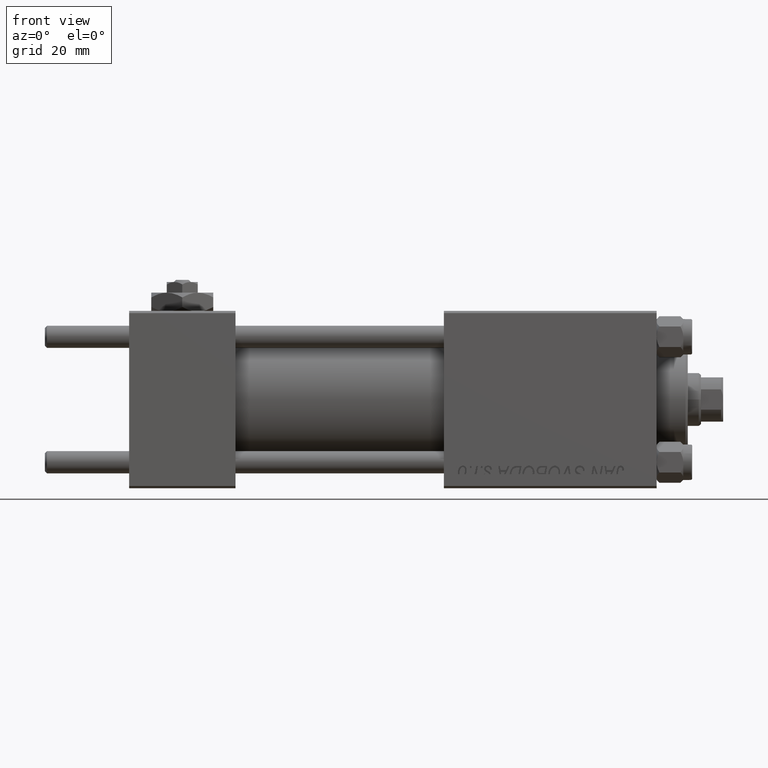
[diagram: clean part render]
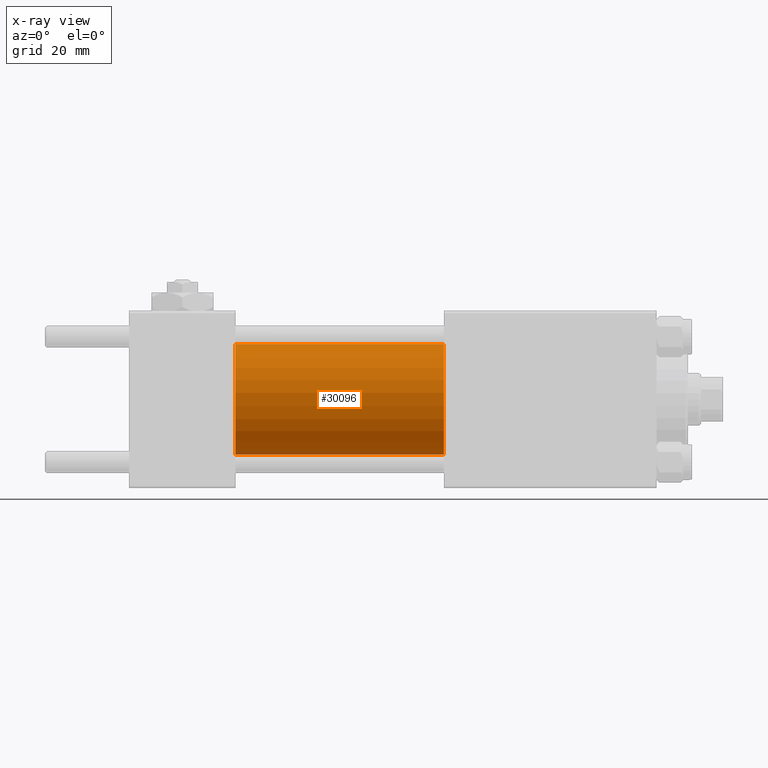
[diagram: x-ray — body ghosted, one internal face saturated and labeled with its STEP entity id]
A machine part, front view, then the same camera in x-ray: the body is ghosted and one INTERNAL B-rep face — a face not visible from any outside direction — is saturated and labeled: STEP entity #30096.
In plain terms, the highlighted cylindrical surface (partial cylindrical patch) has radius 12.5 mm, axis along (-1, -0, -0).
Its self-contained STEP definition (entity closure, byte-faithful):
#1237 = DIRECTION ( 'NONE',  ( 0.000000000000000000, 0.000000000000000000, -1.000000000000000000 ) ) ;
#3171 = DIRECTION ( 'NONE',  ( 1.000000000000000000, 0.000000000000000000, 0.000000000000000000 ) ) ;
#3516 = CIRCLE ( 'NONE', #44252, 12.49999999999999645 ) ;
#4115 = ORIENTED_EDGE ( 'NONE', *, *, #32050, .T. ) ;
#4175 = CIRCLE ( 'NONE', #33270, 12.49999999999999645 ) ;
#4520 = CARTESIAN_POINT ( 'NONE',  ( 24.00000000000000000, 0.000000000000000000, 12.49999999999999645 ) ) ;
#4887 = VERTEX_POINT ( 'NONE', #5827 ) ;
#5607 = ORIENTED_EDGE ( 'NONE', *, *, #9340, .F. ) ;
#5827 = CARTESIAN_POINT ( 'NONE',  ( 71.00000000000001421, 1.530808498934191127E-15, -12.49999999999999645 ) ) ;
#6581 = VECTOR ( 'NONE', #24459, 1000.000000000000000 ) ;
#7016 = ORIENTED_EDGE ( 'NONE', *, *, #13541, .T. ) ;
#8069 = LINE ( 'NONE', #48166, #6581 ) ;
#9340 = EDGE_CURVE ( 'NONE', #29088, #42274, #3516, .T. ) ;
#10488 = DIRECTION ( 'NONE',  ( -1.000000000000000000, -0.000000000000000000, -0.000000000000000000 ) ) ;
#12171 = EDGE_LOOP ( 'NONE', ( #4115, #7016, #5607, #20027 ) ) ;
#12675 = DIRECTION ( 'NONE',  ( 1.000000000000000000, 0.000000000000000000, 0.000000000000000000 ) ) ;
#13541 = EDGE_CURVE ( 'NONE', #4887, #42274, #34350, .T. ) ;
#16895 = VERTEX_POINT ( 'NONE', #35850 ) ;
#18231 = CARTESIAN_POINT ( 'NONE',  ( 71.00000000000001421, 1.530808498934191127E-15, -12.49999999999999645 ) ) ;
#19589 = FACE_OUTER_BOUND ( 'NONE', #12171, .T. ) ;
#20027 = ORIENTED_EDGE ( 'NONE', *, *, #30425, .F. ) ;
#22463 = DIRECTION ( 'NONE',  ( 0.000000000000000000, 0.000000000000000000, 1.000000000000000000 ) ) ;
#24459 = DIRECTION ( 'NONE',  ( -1.000000000000000000, -0.000000000000000000, -0.000000000000000000 ) ) ;
#26949 = VECTOR ( 'NONE', #50525, 1000.000000000000000 ) ;
#29088 = VERTEX_POINT ( 'NONE', #4520 ) ;
#30096 = ADVANCED_FACE ( 'NONE', ( #19589 ), #30260, .F. ) ;
#30260 = CYLINDRICAL_SURFACE ( 'NONE', #35686, 12.49999999999999645 ) ;
#30425 = EDGE_CURVE ( 'NONE', #16895, #29088, #8069, .T. ) ;
#32050 = EDGE_CURVE ( 'NONE', #16895, #4887, #4175, .T. ) ;
#32467 = CARTESIAN_POINT ( 'NONE',  ( 24.00000000000000000, 0.000000000000000000, 0.000000000000000000 ) ) ;
#33270 = AXIS2_PLACEMENT_3D ( 'NONE', #38831, #3171, #34920 ) ;
#34350 = LINE ( 'NONE', #18231, #26949 ) ;
#34920 = DIRECTION ( 'NONE',  ( 0.000000000000000000, 0.000000000000000000, -1.000000000000000000 ) ) ;
#35686 = AXIS2_PLACEMENT_3D ( 'NONE', #46164, #10488, #22463 ) ;
#35850 = CARTESIAN_POINT ( 'NONE',  ( 71.00000000000001421, 0.000000000000000000, 12.49999999999999645 ) ) ;
#37706 = CARTESIAN_POINT ( 'NONE',  ( 24.00000000000000000, 1.530808498934191127E-15, -12.49999999999999645 ) ) ;
#38831 = CARTESIAN_POINT ( 'NONE',  ( 71.00000000000001421, 0.000000000000000000, 0.000000000000000000 ) ) ;
#42274 = VERTEX_POINT ( 'NONE', #37706 ) ;
#44252 = AXIS2_PLACEMENT_3D ( 'NONE', #32467, #12675, #1237 ) ;
#46164 = CARTESIAN_POINT ( 'NONE',  ( 71.00000000000001421, 0.000000000000000000, 0.000000000000000000 ) ) ;
#48166 = CARTESIAN_POINT ( 'NONE',  ( 71.00000000000001421, 0.000000000000000000, 12.49999999999999645 ) ) ;
#50525 = DIRECTION ( 'NONE',  ( -1.000000000000000000, -0.000000000000000000, -0.000000000000000000 ) ) ;